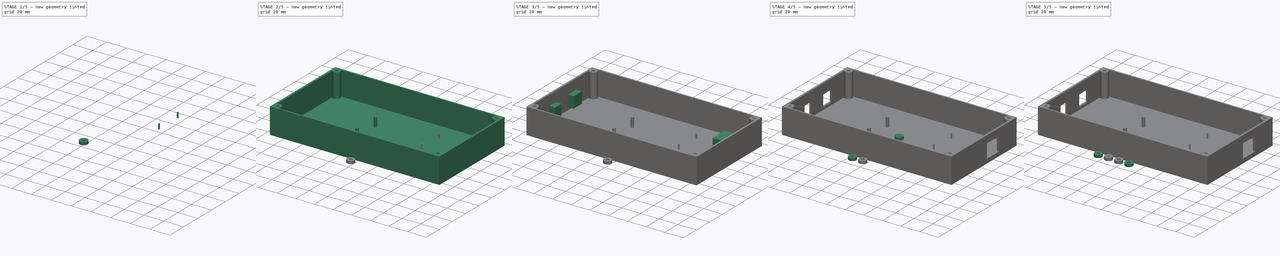
[diagram: build sequence overview — one tinted view per stage of 5, left to right]
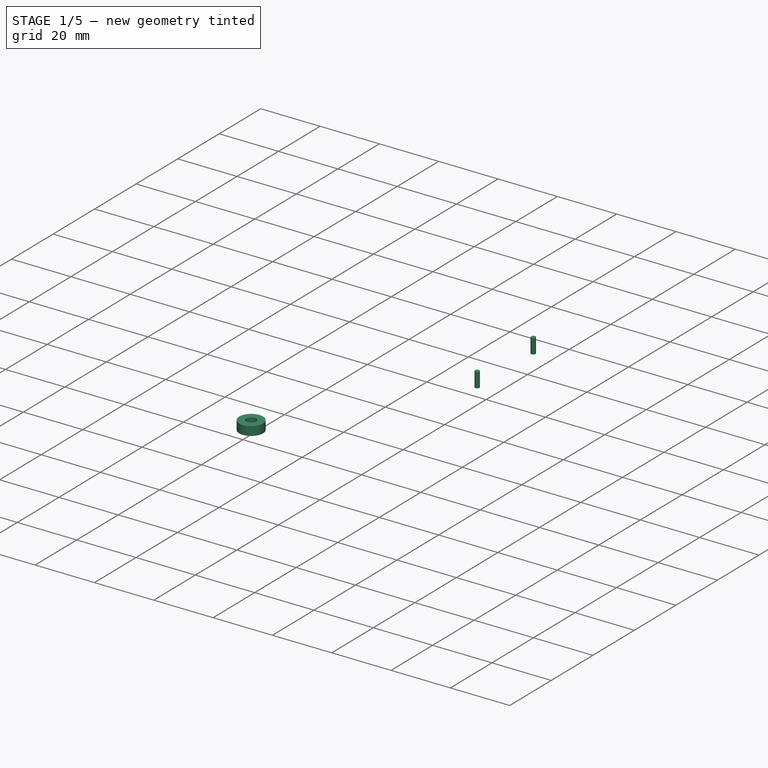
[diagram: stage 1 of 5 — iso view after this stage's code; geometry added in this stage tinted green]
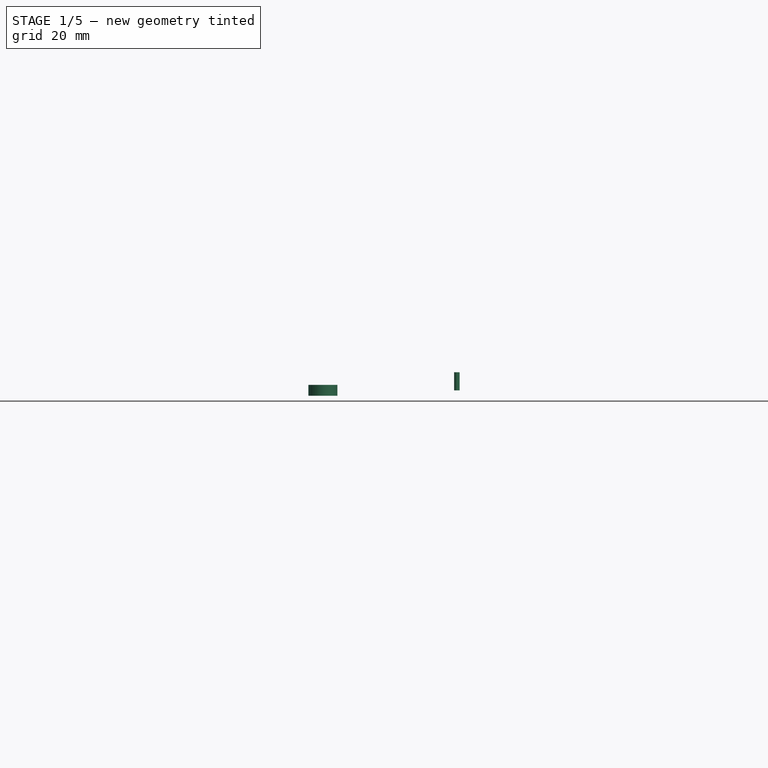
[diagram: stage 1 of 5 — front view after this stage's code; geometry added in this stage tinted green]
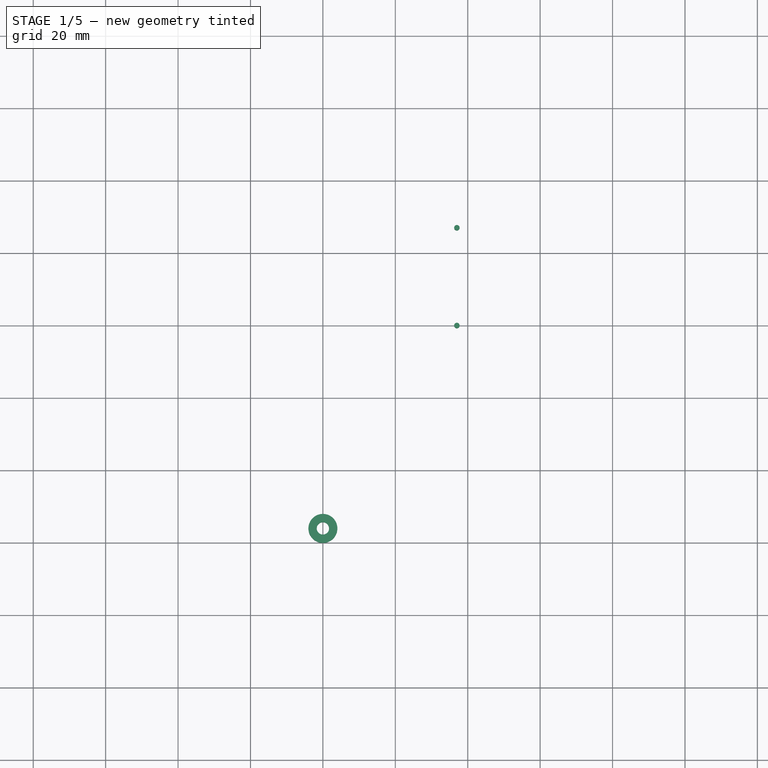
[diagram: stage 1 of 5 — top view after this stage's code; geometry added in this stage tinted green]
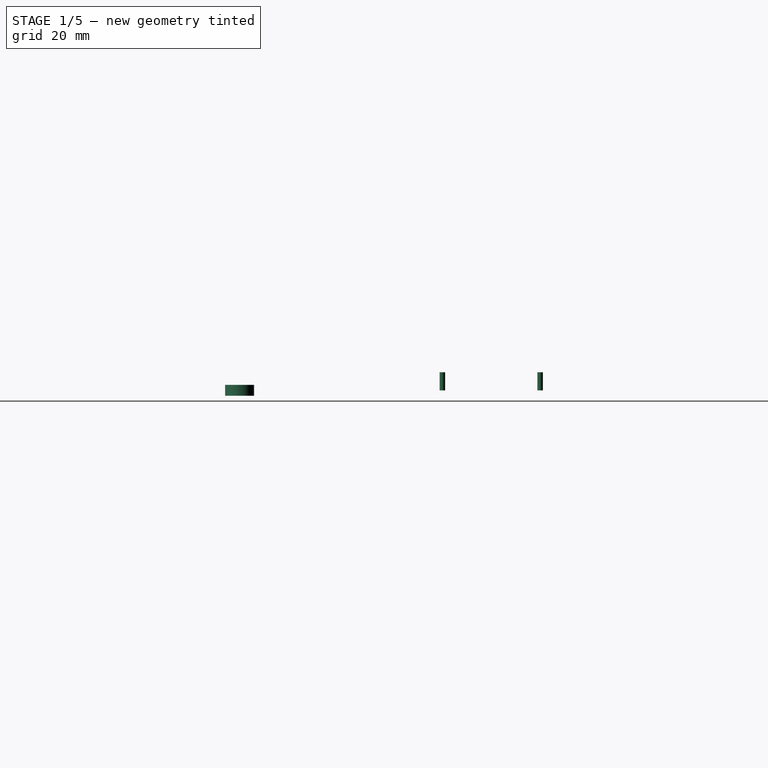
[diagram: stage 1 of 5 — right view after this stage's code; geometry added in this stage tinted green]
FCSTD DOCUMENT  (FreeCAD 0.16R6712 (Git))
Label: case unten
License: All rights reserved
LicenseURL: http://en.wikipedia.org/wiki/All_rights_reserved
objects: Part::Cylinder×12, Part::Cut×5, Sketcher::SketchObject×3, Part::Extrusion×3, Part::Box×3, Part::MultiFuse×2
note: 28 computed .brp shape members not serialized (recipe doc carries the construction recipe); baked Part::Feature solids carry a one-line shape summary decoded from their .brp

FEATURE [Part::Cylinder] Cylinder007  label="Zylinder004"
  Angle = 360
  Height = 5
  Placement = pos=(37,27,0) rot=(0,0,1;0rad)
  Radius = 0.75
FEATURE [Part::Cylinder] Cylinder008  label="Zylinder005"
  Angle = 360
  Height = 5
  Placement = pos=(37,0,0) rot=(0,0,1;0rad)
  Radius = 0.75
FEATURE [Part::Cylinder] Cylinder013  label="Zylinder010"
  Angle = 360
  Height = 3
  Radius = 1.7
FEATURE [Part::Cylinder] Cylinder014  label="Zylinder011"
  Angle = 360
  Height = 3
  Radius = 4
FEATURE [Part::Cut] Cut005  label="Cut Mutterscheibe"
  Base = -> Cylinder014
  Placement = pos=(0,-56,-1.5) rot=(0,0,1;0rad)
  Tool = -> Cylinder013
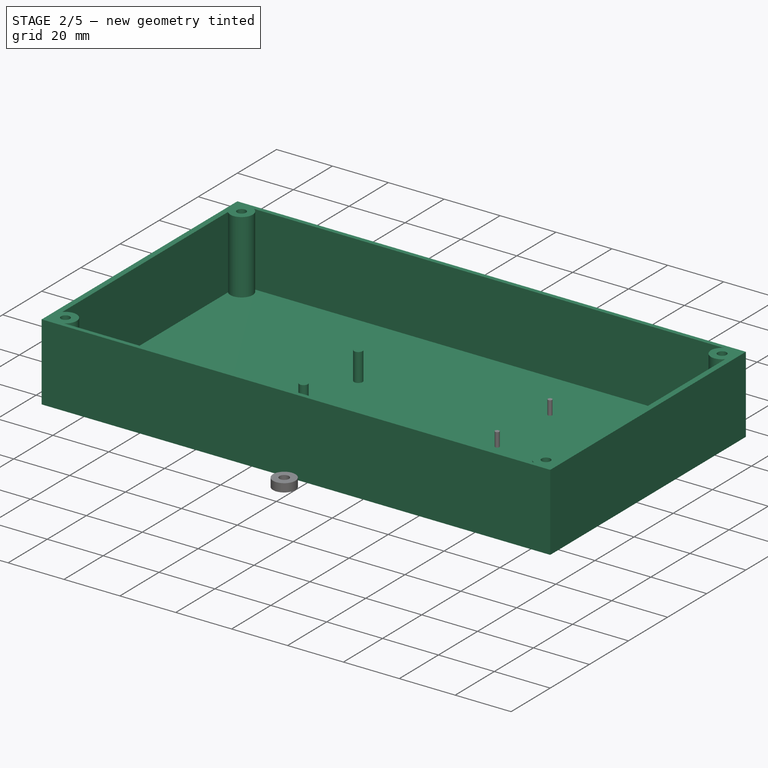
[diagram: stage 2 of 5 — iso view after this stage's code; geometry added in this stage tinted green]
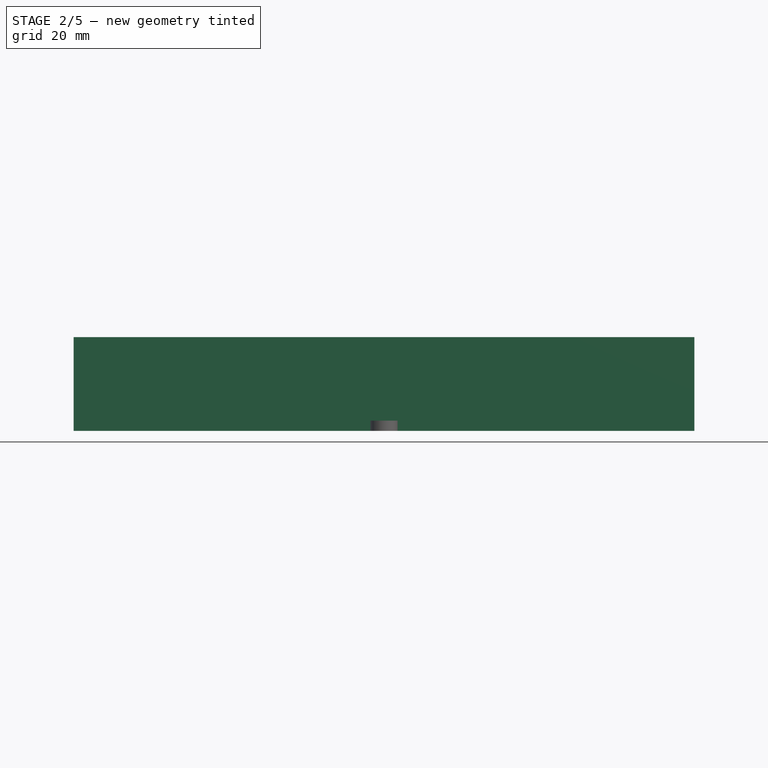
[diagram: stage 2 of 5 — front view after this stage's code; geometry added in this stage tinted green]
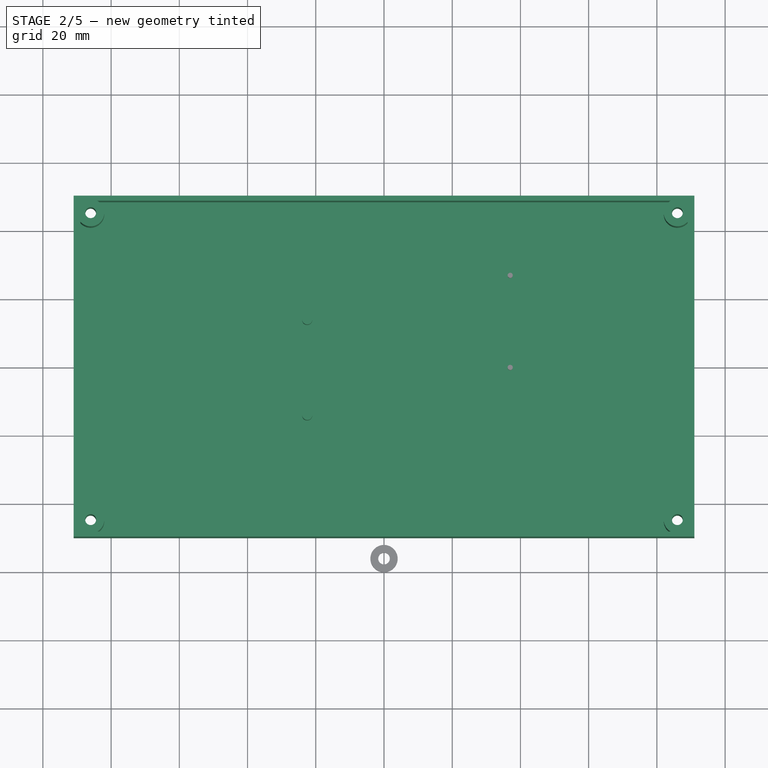
[diagram: stage 2 of 5 — top view after this stage's code; geometry added in this stage tinted green]
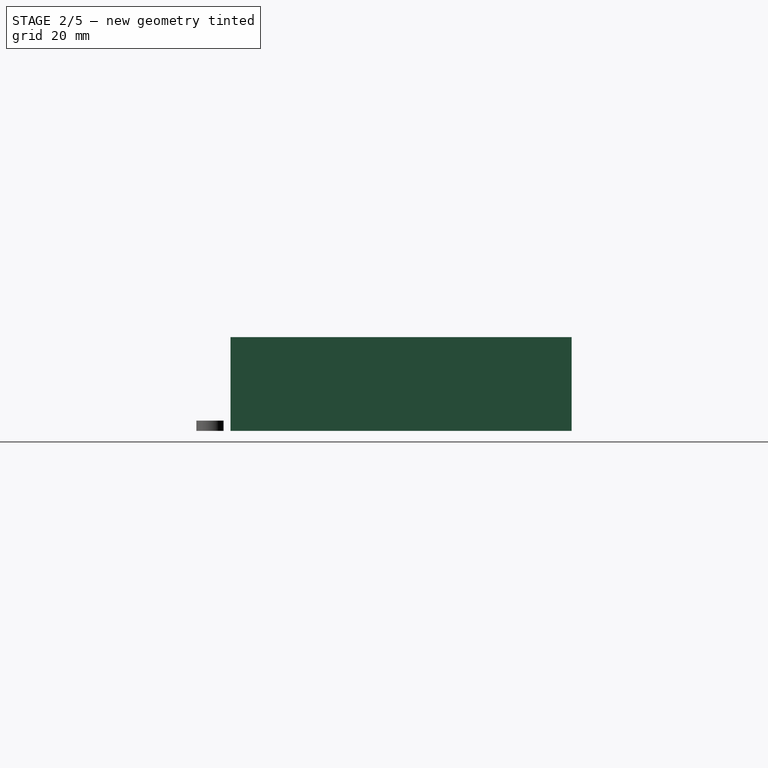
[diagram: stage 2 of 5 — right view after this stage's code; geometry added in this stage tinted green]
FEATURE [Sketcher::SketchObject] Sketch003  label="Sketch außen001"
  sketch-geometry (16):
    g0: LineSegment StartX=-84.0635 StartY=48.5 StartZ=0 EndX=84.0635 EndY=48.5 EndZ=0
    g1: LineSegment StartX=89 StartY=42.3542 StartZ=0 EndX=89 EndY=-42.3542 EndZ=0
    g2: LineSegment StartX=84.0635 StartY=-48.5 StartZ=0 EndX=-84.0635 EndY=-48.5 EndZ=0
    g3: LineSegment StartX=-89 StartY=-42.3542 StartZ=0 EndX=-89 EndY=42.3542 EndZ=0
    g4: LineSegment StartX=-91 StartY=50 StartZ=0 EndX=91 EndY=50 EndZ=0
    g5: LineSegment StartX=91 StartY=50 StartZ=0 EndX=91 EndY=-50 EndZ=0
    g6: LineSegment StartX=91 StartY=-50 StartZ=0 EndX=-91 EndY=-50 EndZ=0
    g7: LineSegment StartX=-91 StartY=-50 StartZ=0 EndX=-91 EndY=50 EndZ=0
    g8: Circle CenterX=-86 CenterY=45 CenterZ=0 NormalX=0 NormalY=0 NormalZ=1 Radius=1.6
    g9: Circle CenterX=86 CenterY=45 CenterZ=0 NormalX=0 NormalY=0 NormalZ=1 Radius=1.6
    g10: Circle CenterX=86 CenterY=-45 CenterZ=0 NormalX=0 NormalY=0 NormalZ=1 Radius=1.6
    g11: Circle CenterX=-86 CenterY=-45 CenterZ=0 NormalX=0 NormalY=0 NormalZ=1 Radius=1.6
    g12: ArcOfCircle CenterX=-86 CenterY=45 CenterZ=0 NormalX=0 NormalY=0 NormalZ=1 Radius=4 StartAngle=3.86433 EndAngle=7.34862
    g13: ArcOfCircle CenterX=-86 CenterY=-45 CenterZ=0 NormalX=0 NormalY=0 NormalZ=1 Radius=4 StartAngle=5.21775 EndAngle=8.70204
    g14: ArcOfCircle CenterX=86 CenterY=45 CenterZ=0 NormalX=0 NormalY=0 NormalZ=1 Radius=4 StartAngle=2.07616 EndAngle=5.56045
    g15: ArcOfCircle CenterX=86 CenterY=-45 CenterZ=0 NormalX=0 NormalY=0 NormalZ=1 Radius=4 StartAngle=0.722734 EndAngle=4.20703
  constraints (45):
    c: Horizontal(g0)
    c: Horizontal(g2)
    c: Vertical(g1)
    c: Vertical(g3)
    c: Coincident(g4,g5)
    c: Coincident(g5,g6)
    c: Coincident(g6,g7)
    c: Coincident(g7,g4)
    c: Horizontal(g4)
    c: Horizontal(g6)
    c: Vertical(g5)
    c: Vertical(g7)
    c: DistanceX(g4,g4) = 182
    c: DistanceY(g7,g7) = 100
    c: Symmetric(g4,g6,g-1)
    c: Symmetric(g4,g4,g-2)
    c: Coincident(g12,g8)
    c: Coincident(g11,g13)
    c: Coincident(g10,g15)
    c: Coincident(g9,g14)
    c: Radius(g8) = 1.6
    c: Radius(g10) = 1.6
    c: Radius(g9) = 1.6
    c: Radius(g11) = 1.6
    c: Radius(g13) = 4
    c: Radius(g15) = 4
    c: Radius(g14) = 4
    c: Radius(g12) = 4
    c: Symmetric(g10,g9,g-1)
    c: Symmetric(g11,g8,g-1)
    c: Symmetric(g11,g10,g-2)
    c: DistanceY(g6,g11) = 5
    c: DistanceX(g6,g11) = 5
    c: Coincident(g13,g2)
    c: Coincident(g13,g3)
    c: Coincident(g12,g3)
    c: Coincident(g12,g0)
    c: Coincident(g15,g1)
    c: Coincident(g15,g2)
    c: Coincident(g14,g0)
    c: Coincident(g14,g1)
    c: DistanceX(g6,g3) = 2
    c: DistanceY(g6,g2) = 1.5
    c: DistanceX(g1,g4) = 2
    c: DistanceY(g0,g4) = 1.5
FEATURE [Part::Extrusion] Extrude004  label="Extrude außen Boden"
  Base = -> Sketch003
  Dir = (0,0,26)
  Solid = true
FEATURE [Sketcher::SketchObject] Sketch002  label="Sketch Boden"
  sketch-geometry (32):
    g0: LineSegment StartX=-91 StartY=50 StartZ=0 EndX=91 EndY=50 EndZ=0
    g1: LineSegment StartX=91 StartY=50 StartZ=0 EndX=91 EndY=-50 EndZ=0
    g2: LineSegment StartX=91 StartY=-50 StartZ=0 EndX=-91 EndY=-50 EndZ=0
    g3: LineSegment StartX=-91 StartY=-50 StartZ=0 EndX=-91 EndY=50 EndZ=0
    g4: LineSegment StartX=-82.7159 StartY=44.12 StartZ=0 EndX=-83.5958 EndY=47.4042 EndZ=0
    g5: LineSegment StartX=-83.5958 StartY=47.4042 StartZ=0 EndX=-86.88 EndY=48.2841 EndZ=0
    g6: LineSegment StartX=-86.88 StartY=48.2841 StartZ=0 EndX=-89.2841 EndY=45.88 EndZ=0
    g7: LineSegment StartX=-89.2841 StartY=45.88 StartZ=0 EndX=-88.4042 EndY=42.5958 EndZ=0
    g8: LineSegment StartX=-88.4042 StartY=42.5958 StartZ=0 EndX=-85.12 EndY=41.7159 EndZ=0
    g9: LineSegment StartX=-85.12 StartY=41.7159 StartZ=0 EndX=-82.7159 EndY=44.12 EndZ=0
    g10: Circle [constr] CenterX=-86 CenterY=45 CenterZ=0 NormalX=0 NormalY=0 NormalZ=1 Radius=3.4
    g11: LineSegment StartX=-86.88 StartY=-48.2841 StartZ=0 EndX=-83.5958 EndY=-47.4042 EndZ=0
    g12: LineSegment StartX=-83.5958 StartY=-47.4042 StartZ=0 EndX=-82.7159 EndY=-44.12 EndZ=0
    g13: LineSegment StartX=-82.7159 StartY=-44.12 StartZ=0 EndX=-85.12 EndY=-41.7159 EndZ=0
    g14: LineSegment StartX=-85.12 StartY=-41.7159 StartZ=0 EndX=-88.4042 EndY=-42.5958 EndZ=0
    g15: LineSegment StartX=-88.4042 StartY=-42.5958 StartZ=0 EndX=-89.2841 EndY=-45.88 EndZ=0
    g16: LineSegment StartX=-89.2841 StartY=-45.88 StartZ=0 EndX=-86.88 EndY=-48.2841 EndZ=0
    g17: Circle [constr] CenterX=-86 CenterY=-45 CenterZ=0 NormalX=0 NormalY=0 NormalZ=1 Radius=3.4
    g18: LineSegment StartX=85.12 StartY=41.7159 StartZ=0 EndX=88.4042 EndY=42.5958 EndZ=0
    g19: LineSegment StartX=88.4042 StartY=42.5958 StartZ=0 EndX=89.2841 EndY=45.88 EndZ=0
    g20: LineSegment StartX=89.2841 StartY=45.88 StartZ=0 EndX=86.88 EndY=48.2841 EndZ=0
    g21: LineSegment StartX=86.88 StartY=48.2841 StartZ=0 EndX=83.5958 EndY=47.4042 EndZ=0
    g22: LineSegment StartX=83.5958 StartY=47.4042 StartZ=0 EndX=82.7159 EndY=44.12 EndZ=0
    g23: LineSegment StartX=82.7159 StartY=44.12 StartZ=0 EndX=85.12 EndY=41.7159 EndZ=0
    g24: Circle [constr] CenterX=86 CenterY=45 CenterZ=0 NormalX=0 NormalY=0 NormalZ=1 Radius=3.4
    g25: LineSegment StartX=89.2841 StartY=-45.88 StartZ=0 EndX=88.4042 EndY=-42.5958 EndZ=0
    g26: LineSegment StartX=88.4042 StartY=-42.5958 StartZ=0 EndX=85.12 EndY=-41.7159 EndZ=0
    g27: LineSegment StartX=85.12 StartY=-41.7159 StartZ=0 EndX=82.7159 EndY=-44.12 EndZ=0
    g28: LineSegment StartX=82.7159 StartY=-44.12 StartZ=0 EndX=83.5958 EndY=-47.4042 EndZ=0
    g29: LineSegment StartX=83.5958 StartY=-47.4042 StartZ=0 EndX=86.88 EndY=-48.2841 EndZ=0
    g30: LineSegment StartX=86.88 StartY=-48.2841 StartZ=0 EndX=89.2841 EndY=-45.88 EndZ=0
    g31: Circle [constr] CenterX=86 CenterY=-45 CenterZ=0 NormalX=0 NormalY=0 NormalZ=1 Radius=3.4
  constraints (79):
    c: Coincident(g0,g1)
    c: Coincident(g1,g2)
    c: Coincident(g2,g3)
    c: Coincident(g3,g0)
    c: Horizontal(g0)
    c: Horizontal(g2)
    c: Vertical(g1)
    c: Vertical(g3)
    c: Coincident(g4,g5)
    c: Coincident(g5,g6)
    c: Coincident(g6,g7)
    c: Coincident(g7,g8)
    c: Coincident(g8,g9)
    c: Coincident(g9,g4)
    c: Equal(g4, g5-g9) x5
    c: PointOnObject(g4,g10)
    c: PointOnObject(g5,g10)
    c: PointOnObject(g6,g10)
    c: PointOnObject(g7,g10)
    c: PointOnObject(g8,g10)
    c: PointOnObject(g9,g10)
    c: Coincident(g11,g12)
    c: Coincident(g12,g13)
    c: Coincident(g13,g14)
    c: Coincident(g14,g15)
    c: Coincident(g15,g16)
    c: Coincident(g16,g11)
    c: Equal(g11, g12-g16) x5
    c: PointOnObject(g11,g17)
    c: PointOnObject(g12,g17)
    c: PointOnObject(g13,g17)
    c: PointOnObject(g14,g17)
    c: PointOnObject(g15,g17)
    c: PointOnObject(g16,g17)
    c: Coincident(g18,g19)
    c: Coincident(g19,g20)
    c: Coincident(g20,g21)
    c: Coincident(g21,g22)
    c: Coincident(g22,g23)
    c: Coincident(g23,g18)
    c: Equal(g18, g19-g23) x5
    c: PointOnObject(g18,g24)
    c: PointOnObject(g19,g24)
    c: PointOnObject(g20,g24)
    c: PointOnObject(g21,g24)
    c: PointOnObject(g22,g24)
    c: PointOnObject(g23,g24)
    c: Coincident(g25,g26)
    c: Coincident(g26,g27)
    c: Coincident(g27,g28)
    c: Coincident(g28,g29)
    c: Coincident(g29,g30)
    c: Coincident(g30,g25)
    c: Equal(g25, g26-g30) x5
    c: PointOnObject(g25,g31)
    c: PointOnObject(g26,g31)
    c: PointOnObject(g27,g31)
    c: PointOnObject(g28,g31)
    c: PointOnObject(g29,g31)
    c: PointOnObject(g30,g31)
    c: Symmetric(g10,g17,g-1)
    c: Symmetric(g31,g24,g-1)
    c: Symmetric(g24,g10,g-2)
    c: DistanceY(g2,g17) = 5
    c: DistanceX(g2,g17) = 5
    c: Radius(g17) = 3.4
    c: DistanceY(g2,g0) = 100
    c: DistanceX(g2,g1) = 182
    c: Equal(g17,g10)
    c: Equal(g10,g18)
    c: Equal(g18,g31)
    c: Symmetric(g0,g0,g-2)
    c: Symmetric(g0,g2,g-1)
    c: Equal(g17,g31)
    c: Equal(g31,g24)
    c: Angle(g2,g30) = 0.785398
    c: Angle(g20,g0) = 0.785398
    c: Angle(g0,g6) = 0.785398
    c: Angle(g16,g2) = 0.785398
FEATURE [Part::Extrusion] Extrude002  label="Extrude Boden"
  Base = -> Sketch002
  Dir = (0,0,-1.5)
  Solid = true
FEATURE [Part::Cylinder] Cylinder002  label="Zylinder Schraube"
  Angle = 360
  Height = 10
  Placement = pos=(-22.5,-14,0) rot=(0,0,1;0rad)
  Radius = 1.5
FEATURE [Part::Cylinder] Cylinder003  label="Zylinder Schraube001"
  Angle = 360
  Height = 10
  Placement = pos=(-22.5,14,0) rot=(0,0,1;0rad)
  Radius = 1.5
FEATURE [Part::MultiFuse] Fusion001  label="Fusion Plus"
  Shapes = -> [Cylinder007,Cylinder008,Extrude004,Cylinder002,Cylinder003,Extrude002]
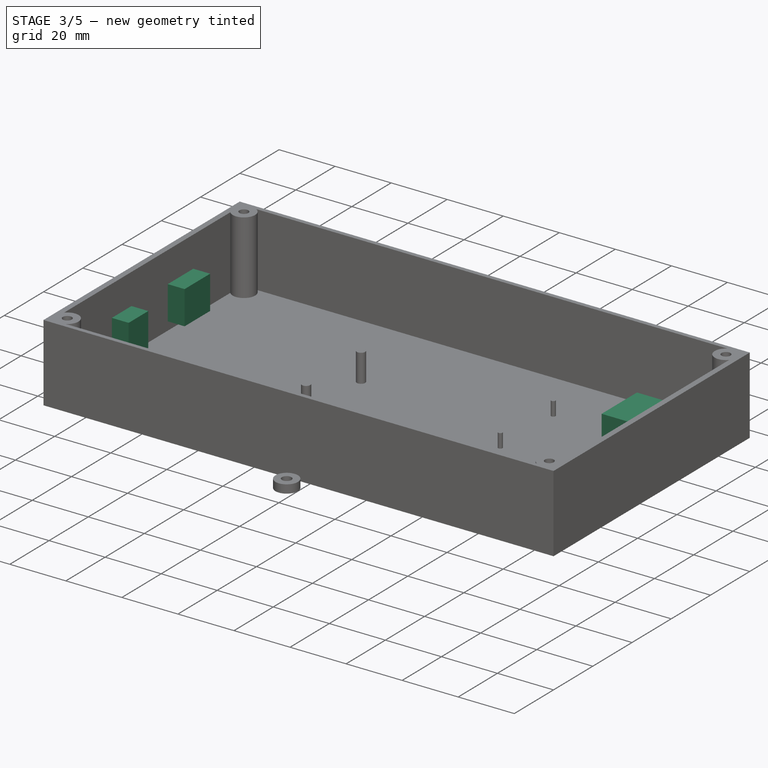
[diagram: stage 3 of 5 — iso view after this stage's code; geometry added in this stage tinted green]
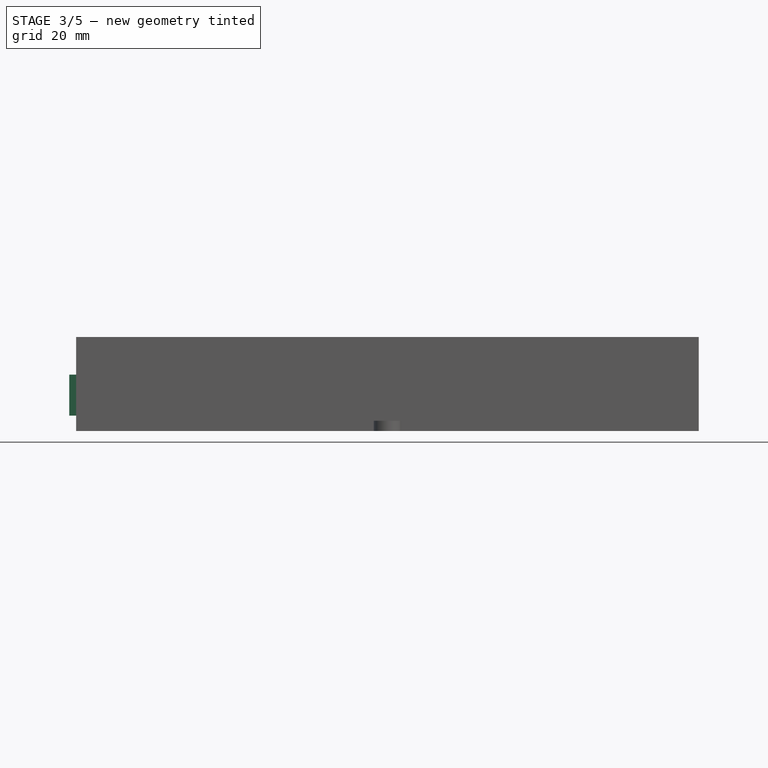
[diagram: stage 3 of 5 — front view after this stage's code; geometry added in this stage tinted green]
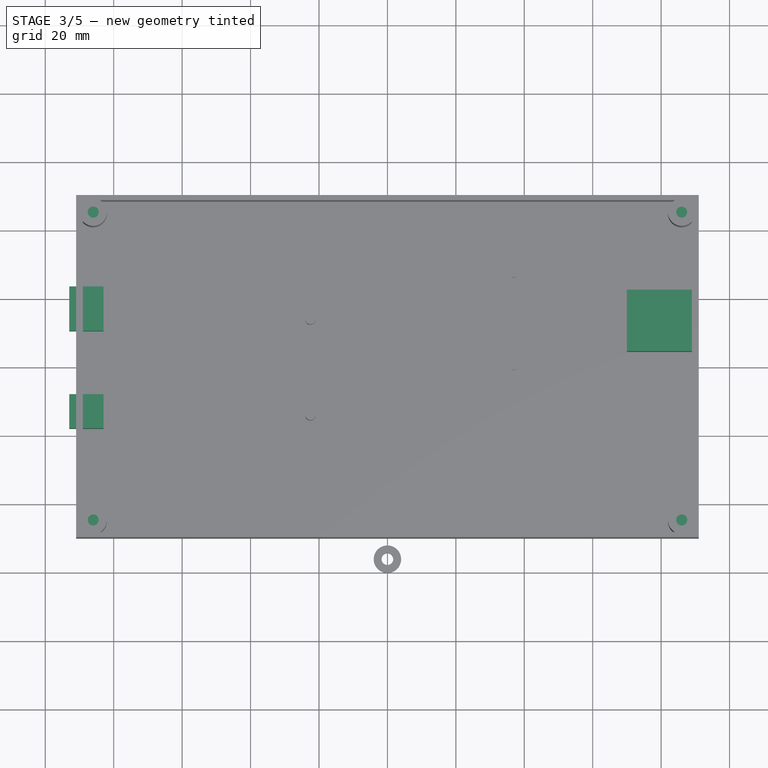
[diagram: stage 3 of 5 — top view after this stage's code; geometry added in this stage tinted green]
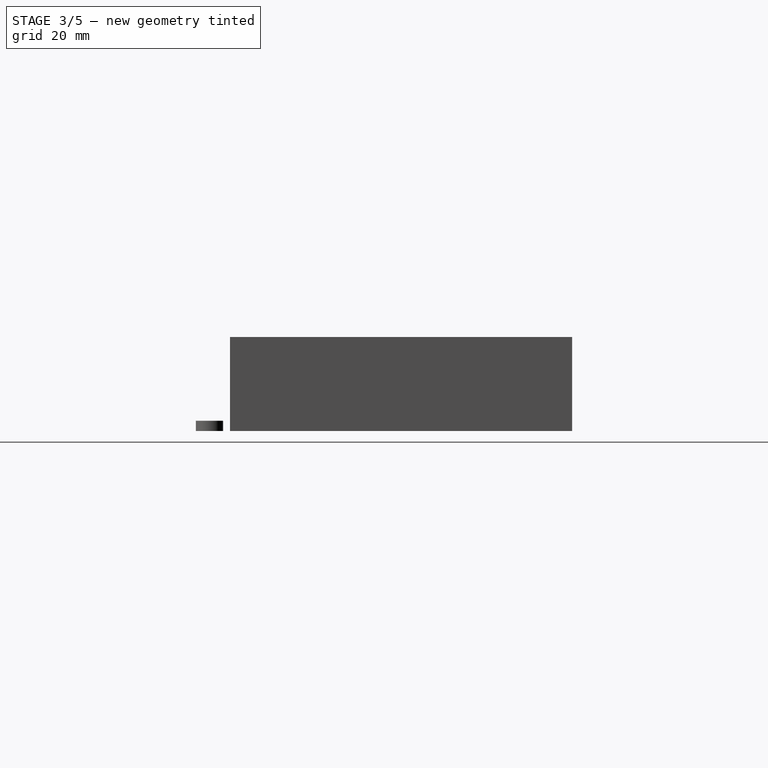
[diagram: stage 3 of 5 — right view after this stage's code; geometry added in this stage tinted green]
FEATURE [Sketcher::SketchObject] Sketch  label="Sketch Schrauben-Einbuchtungen"
  Placement = pos=(0,0,-1.5) rot=(1,0,0;3.14159rad)
  Support = -> Extrude002 [Face30]
  sketch-geometry (28):
    g0: LineSegment StartX=-85.12 StartY=41.7159 StartZ=0 EndX=-82.7159 EndY=44.12 EndZ=0
    g1: LineSegment StartX=-82.7159 StartY=44.12 StartZ=0 EndX=-83.5958 EndY=47.4042 EndZ=0
    g2: LineSegment StartX=-83.5958 StartY=47.4042 StartZ=0 EndX=-86.88 EndY=48.2841 EndZ=0
    g3: LineSegment StartX=-86.88 StartY=48.2841 StartZ=0 EndX=-89.2841 EndY=45.88 EndZ=0
    g4: LineSegment StartX=-89.2841 StartY=45.88 StartZ=0 EndX=-88.4042 EndY=42.5958 EndZ=0
    g5: LineSegment StartX=-88.4042 StartY=42.5958 StartZ=0 EndX=-85.12 EndY=41.7159 EndZ=0
    g6: Circle [constr] CenterX=-86 CenterY=45 CenterZ=0 NormalX=0 NormalY=0 NormalZ=1 Radius=3.4
    g7: LineSegment StartX=89.2841 StartY=45.88 StartZ=0 EndX=86.88 EndY=48.2841 EndZ=0
    g8: LineSegment StartX=86.88 StartY=48.2841 StartZ=0 EndX=83.5958 EndY=47.4042 EndZ=0
    g9: LineSegment StartX=83.5958 StartY=47.4042 StartZ=0 EndX=82.7159 EndY=44.12 EndZ=0
    g10: LineSegment StartX=82.7159 StartY=44.12 StartZ=0 EndX=85.12 EndY=41.7159 EndZ=0
    g11: LineSegment StartX=85.12 StartY=41.7159 StartZ=0 EndX=88.4042 EndY=42.5958 EndZ=0
    g12: LineSegment StartX=88.4042 StartY=42.5958 StartZ=0 EndX=89.2841 EndY=45.88 EndZ=0
    g13: Circle [constr] CenterX=86 CenterY=45 CenterZ=0 NormalX=0 NormalY=0 NormalZ=1 Radius=3.4
    g14: LineSegment StartX=89.2841 StartY=-45.88 StartZ=0 EndX=88.4042 EndY=-42.5958 EndZ=0
    g15: LineSegment StartX=88.4042 StartY=-42.5958 StartZ=0 EndX=85.12 EndY=-41.7159 EndZ=0
    g16: LineSegment StartX=85.12 StartY=-41.7159 StartZ=0 EndX=82.7159 EndY=-44.12 EndZ=0
    g17: LineSegment StartX=82.7159 StartY=-44.12 StartZ=0 EndX=83.5958 EndY=-47.4042 EndZ=0
    g18: LineSegment StartX=83.5958 StartY=-47.4042 StartZ=0 EndX=86.88 EndY=-48.2841 EndZ=0
    g19: LineSegment StartX=86.88 StartY=-48.2841 StartZ=0 EndX=89.2841 EndY=-45.88 EndZ=0
    g20: Circle [constr] CenterX=86 CenterY=-45 CenterZ=0 NormalX=0 NormalY=0 NormalZ=1 Radius=3.4
    g21: LineSegment StartX=-85.12 StartY=-41.7159 StartZ=0 EndX=-88.4042 EndY=-42.5958 EndZ=0
    g22: LineSegment StartX=-88.4042 StartY=-42.5958 StartZ=0 EndX=-89.2841 EndY=-45.88 EndZ=0
    g23: LineSegment StartX=-89.2841 StartY=-45.88 StartZ=0 EndX=-86.88 EndY=-48.2841 EndZ=0
    g24: LineSegment StartX=-86.88 StartY=-48.2841 StartZ=0 EndX=-83.5958 EndY=-47.4042 EndZ=0
    g25: LineSegment StartX=-83.5958 StartY=-47.4042 StartZ=0 EndX=-82.7159 EndY=-44.12 EndZ=0
    g26: LineSegment StartX=-82.7159 StartY=-44.12 StartZ=0 EndX=-85.12 EndY=-41.7159 EndZ=0
    g27: Circle [constr] CenterX=-86 CenterY=-45 CenterZ=0 NormalX=0 NormalY=0 NormalZ=1 Radius=3.4
  constraints (65):
    c: Coincident(g0,g1)
    c: Coincident(g1,g2)
    c: Coincident(g2,g3)
    c: Coincident(g3,g4)
    c: Coincident(g4,g5)
    c: Coincident(g5,g0)
    c: Equal(g0, g1-g5) x5
    c: PointOnObject(g0,g6)
    c: PointOnObject(g1,g6)
    c: PointOnObject(g2,g6)
    c: PointOnObject(g3,g6)
    c: PointOnObject(g4,g6)
    c: PointOnObject(g5,g6)
    c: Coincident(g7,g8)
    c: Coincident(g8,g9)
    c: Coincident(g9,g10)
    c: Coincident(g10,g11)
    c: Coincident(g11,g12)
    c: Coincident(g12,g7)
    c: Equal(g7, g8-g12) x5
    c: PointOnObject(g7,g13)
    c: PointOnObject(g8,g13)
    c: PointOnObject(g9,g13)
    c: PointOnObject(g10,g13)
    c: PointOnObject(g11,g13)
    c: PointOnObject(g12,g13)
    c: Coincident(g14,g15)
    c: Coincident(g15,g16)
    c: Coincident(g16,g17)
    c: Coincident(g17,g18)
    c: Coincident(g18,g19)
    c: Coincident(g19,g14)
    c: Equal(g14, g15-g19) x5
    c: PointOnObject(g14,g20)
    c: PointOnObject(g15,g20)
    c: PointOnObject(g16,g20)
    c: PointOnObject(g17,g20)
    c: PointOnObject(g18,g20)
    c: PointOnObject(g19,g20)
    c: Coincident(g21,g22)
    c: Coincident(g22,g23)
    c: Coincident(g23,g24)
    c: Coincident(g24,g25)
    c: Coincident(g25,g26)
    c: Coincident(g26,g21)
    c: Equal(g21, g22-g26) x5
    c: PointOnObject(g21,g27)
    c: PointOnObject(g22,g27)
    c: PointOnObject(g23,g27)
    c: PointOnObject(g24,g27)
    c: PointOnObject(g25,g27)
    c: PointOnObject(g26,g27)
    c: Symmetric(g6,g13,g-2)
    c: Symmetric(g6,g27,g-1)
    c: Symmetric(g27,g20,g-2)
    c: Equal(g13,g20)
    c: Equal(g20,g27)
    c: Equal(g27,g6)
    c: DistanceY(g27,g-1) = 45
    c: DistanceX(g27,g-1) = 86
    c: Angle(g23,g-1) = 0.785398
    c: Parallel(g7,g23)
    c: Angle(g23,g3) = 1.5708
    c: Angle(g19,g23) = 1.5708
    c: Radius(g27) = 3.4
FEATURE [Part::Extrusion] Extrude  label="Extrude boden muttern"
  Base = -> Sketch
  Dir = (0,0,26)
  Solid = true
FEATURE [Part::Box] Box  label="Würfel USB"
  Height = 12
  Length = 10
  Placement = pos=(-93,10.5,3) rot=(0,0,1;0rad)
  Width = 13
FEATURE [Part::Box] Box001  label="Würfel Power"
  Height = 12
  Length = 10
  Placement = pos=(-93,-18,3) rot=(0,0,1;0rad)
  Width = 10
FEATURE [Part::Box] Box002  label="Würfel Ethernet"
  Height = 15
  Length = 21
  Placement = pos=(70,4.5,3) rot=(0,0,1;0rad)
  Width = 18
FEATURE [Part::MultiFuse] Fusion  label="Fusion Minus"
  Shapes = -> [Box002,Extrude,Box,Box001]
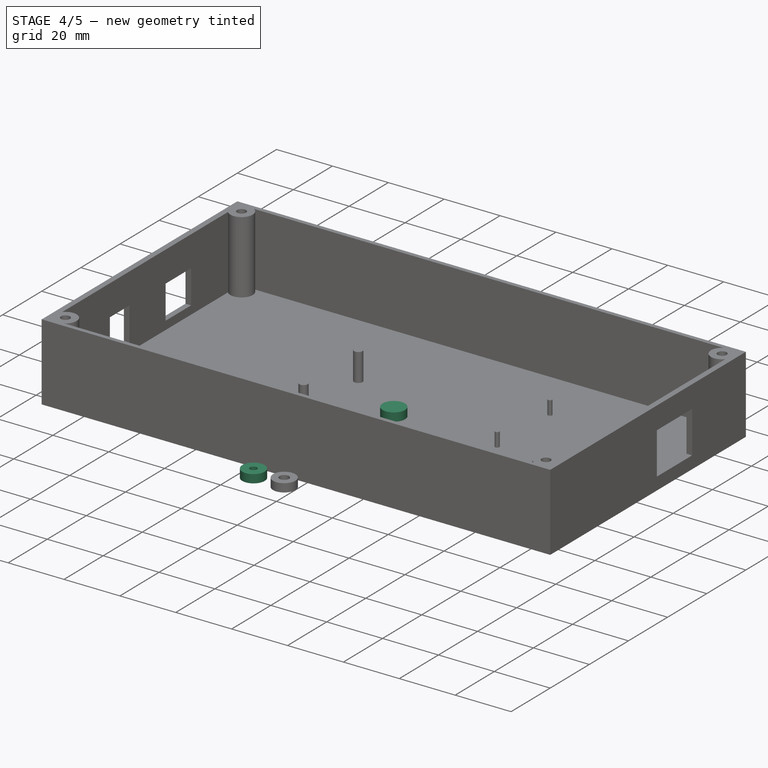
[diagram: stage 4 of 5 — iso view after this stage's code; geometry added in this stage tinted green]
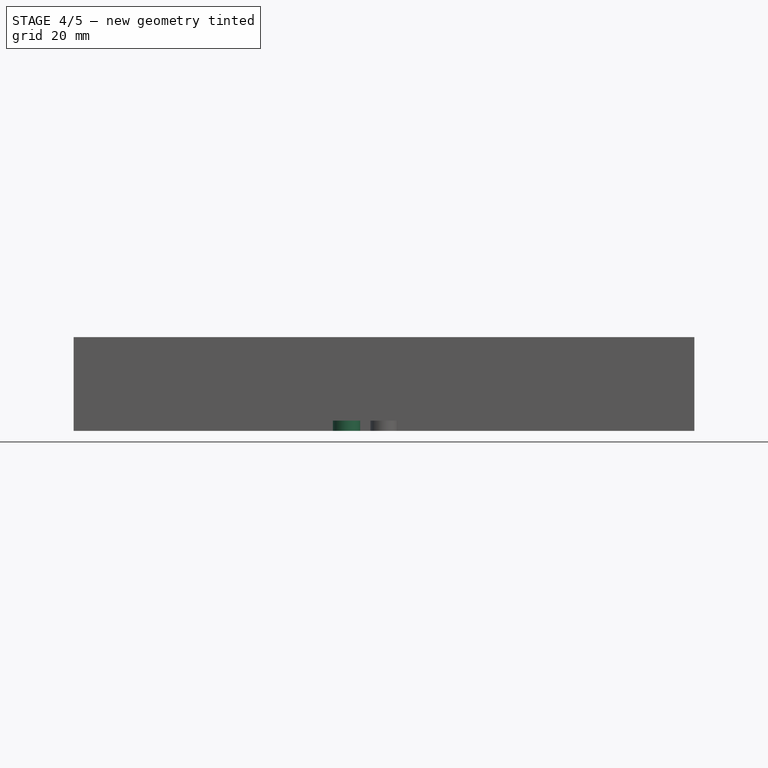
[diagram: stage 4 of 5 — front view after this stage's code; geometry added in this stage tinted green]
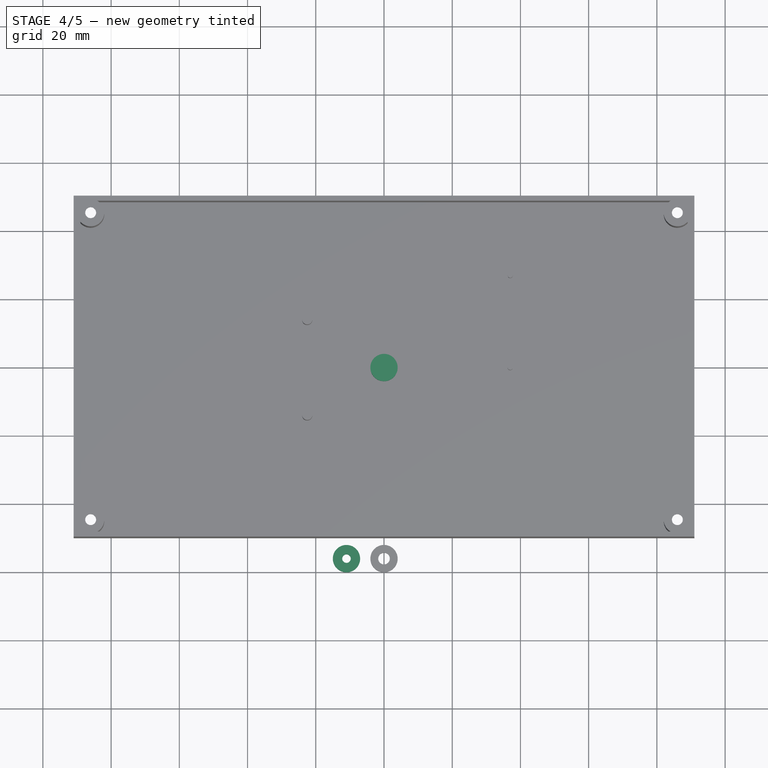
[diagram: stage 4 of 5 — top view after this stage's code; geometry added in this stage tinted green]
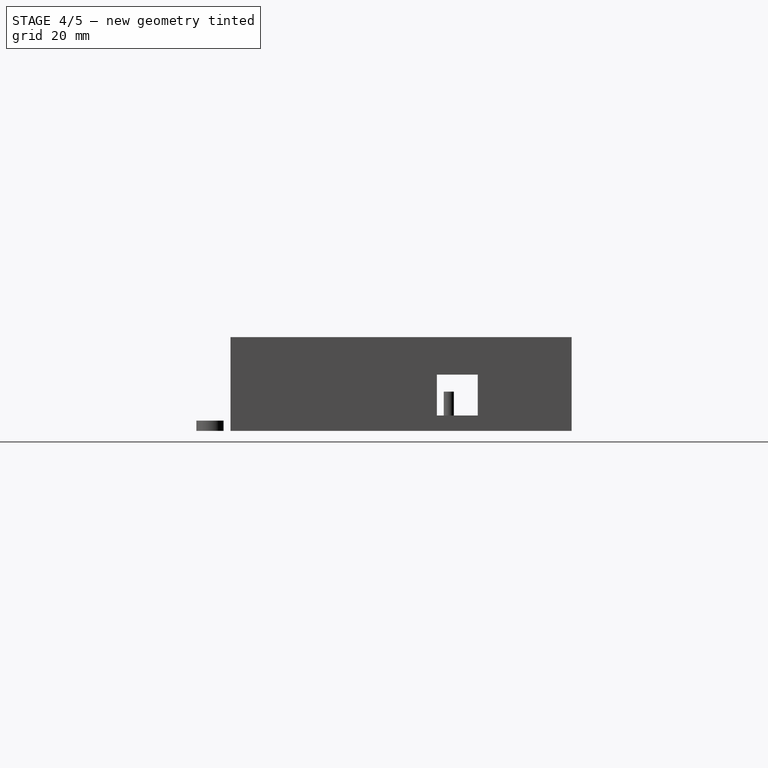
[diagram: stage 4 of 5 — right view after this stage's code; geometry added in this stage tinted green]
FEATURE [Part::Cylinder] Cylinder010  label="Zylinder007"
  Angle = 360
  Height = 3
  Radius = 4
FEATURE [Part::Cylinder] Cylinder011  label="Zylinder008"
  Angle = 360
  Height = 10
  Radius = 1.25
FEATURE [Part::Cylinder] Cylinder012  label="Zylinder009"
  Angle = 360
  Height = 3
  Radius = 4
FEATURE [Part::Cut] Cut004  label="Cut Mutterscheibe klein001"
  Base = -> Cylinder012
  Placement = pos=(-11,-56,-1.5) rot=(0,0,1;0rad)
  Tool = -> Cylinder011
FEATURE [Part::Cut] Cut  label="Cut whole thing"
  Base = -> Fusion001
  Tool = -> Fusion
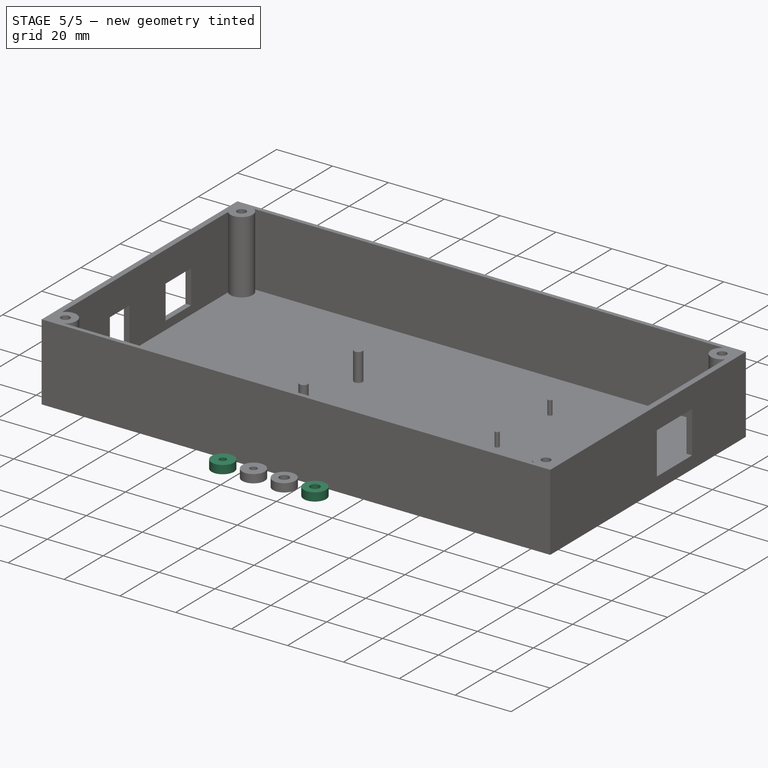
[diagram: stage 5 of 5 — iso view after this stage's code; geometry added in this stage tinted green]
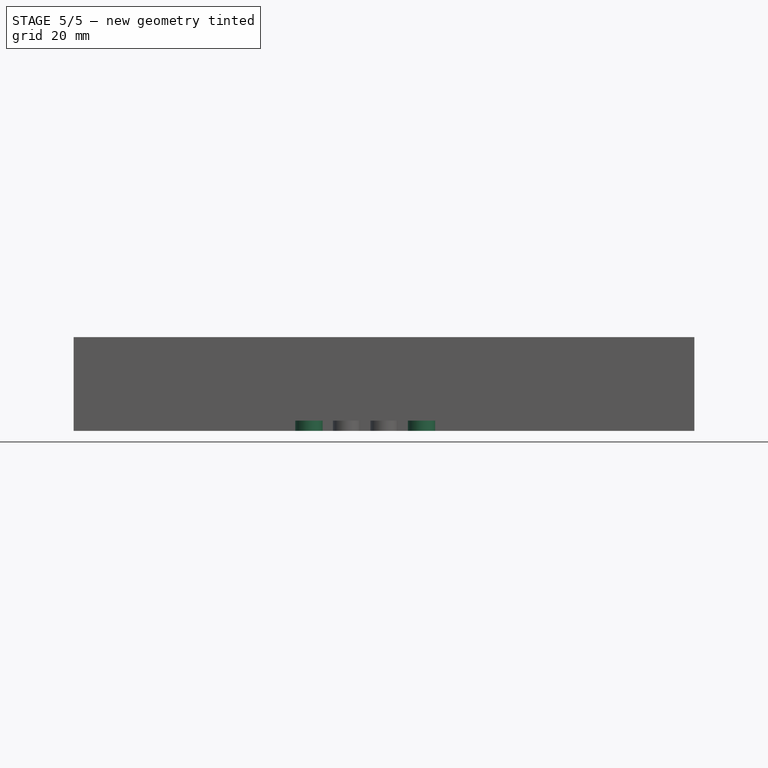
[diagram: stage 5 of 5 — front view after this stage's code; geometry added in this stage tinted green]
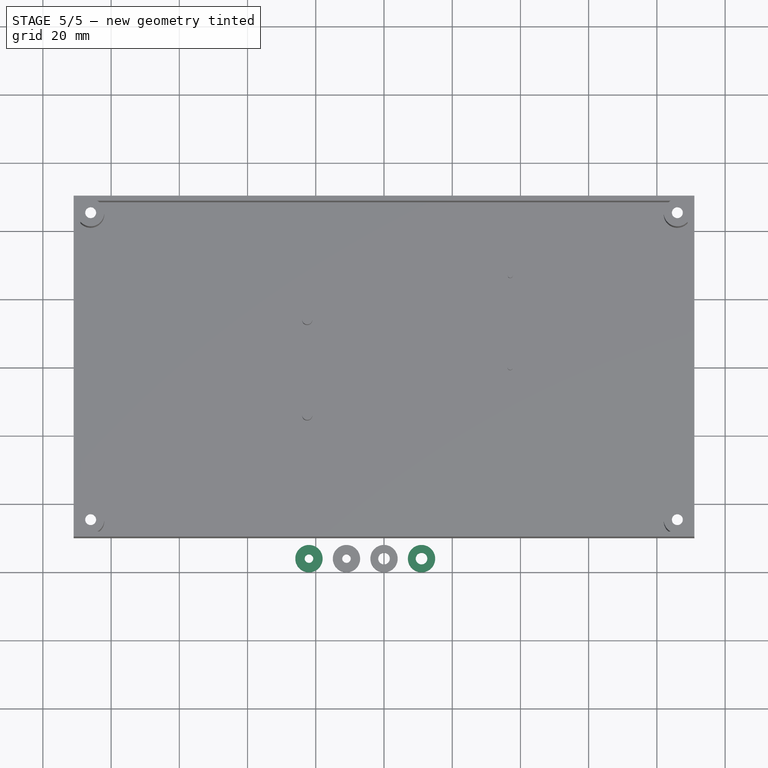
[diagram: stage 5 of 5 — top view after this stage's code; geometry added in this stage tinted green]
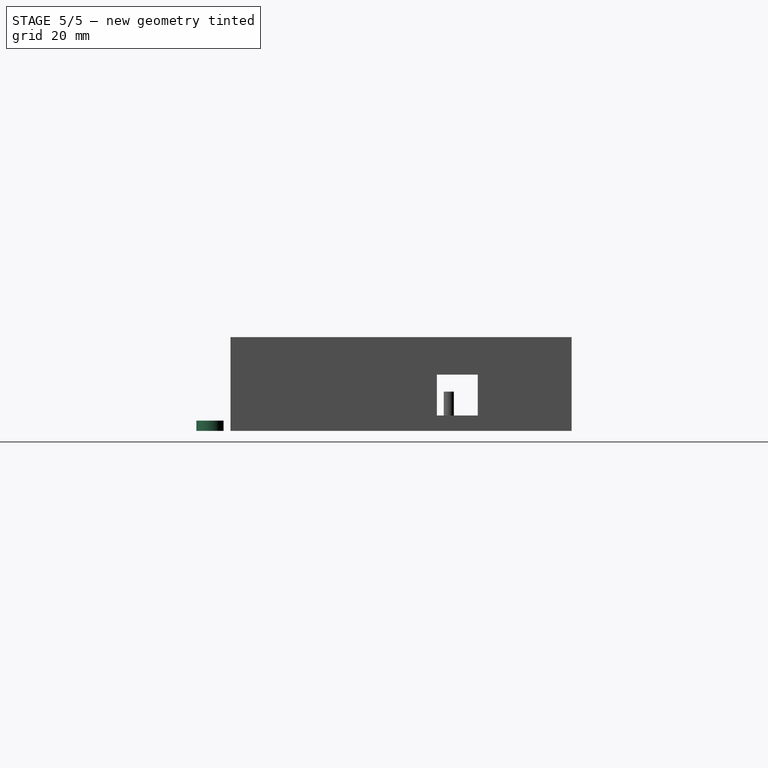
[diagram: stage 5 of 5 — right view after this stage's code; geometry added in this stage tinted green]
FEATURE [Part::Cylinder] Cylinder  label="Zylinder"
  Angle = 360
  Height = 3
  Radius = 1.7
FEATURE [Part::Cylinder] Cylinder004  label="Zylinder001"
  Angle = 360
  Height = 3
  Radius = 4
FEATURE [Part::Cut] Cut002  label="Cut Mutterscheibe001"
  Base = -> Cylinder004
  Placement = pos=(11,-56,-1.5) rot=(0,0,1;0rad)
  Tool = -> Cylinder
FEATURE [Part::Cylinder] Cylinder009  label="Zylinder006"
  Angle = 360
  Height = 10
  Radius = 1.25
FEATURE [Part::Cut] Cut003  label="Cut Mutterscheibe klein"
  Base = -> Cylinder010
  Placement = pos=(-22,-56,-1.5) rot=(0,0,1;0rad)
  Tool = -> Cylinder009
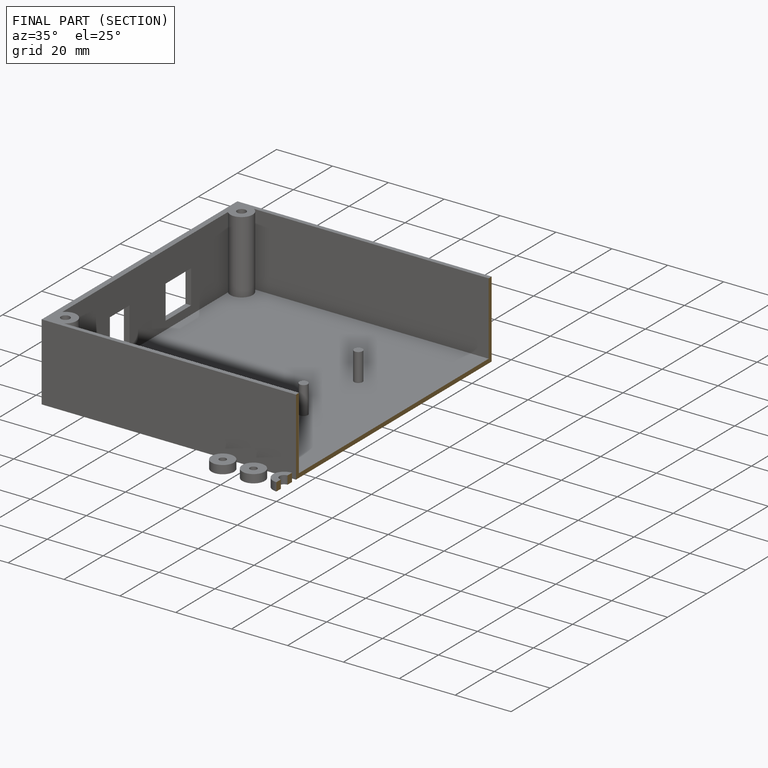
[diagram: finished part — half-section view (interior)]
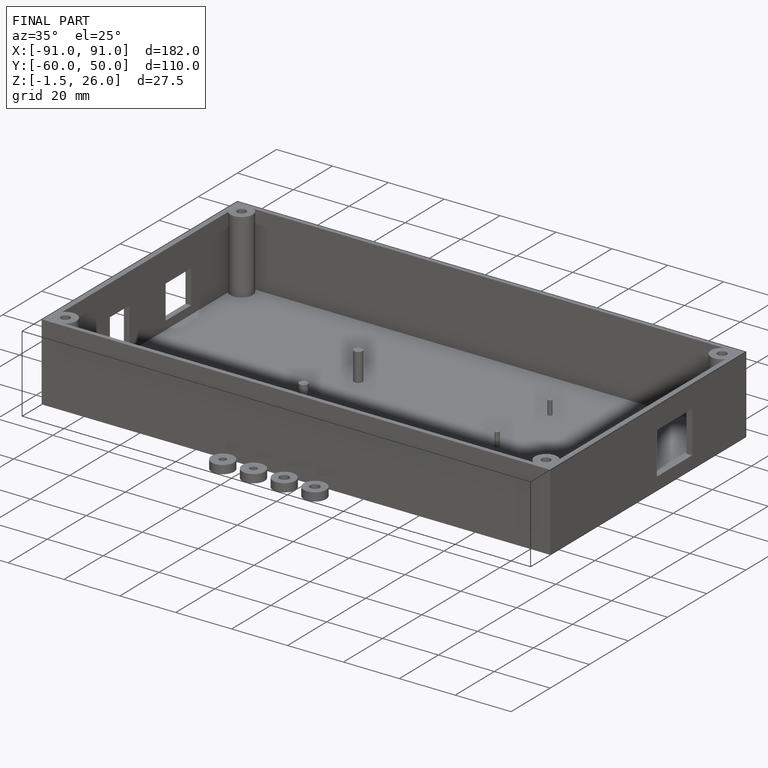
[diagram: finished part — iso view with bounding-box wireframe]
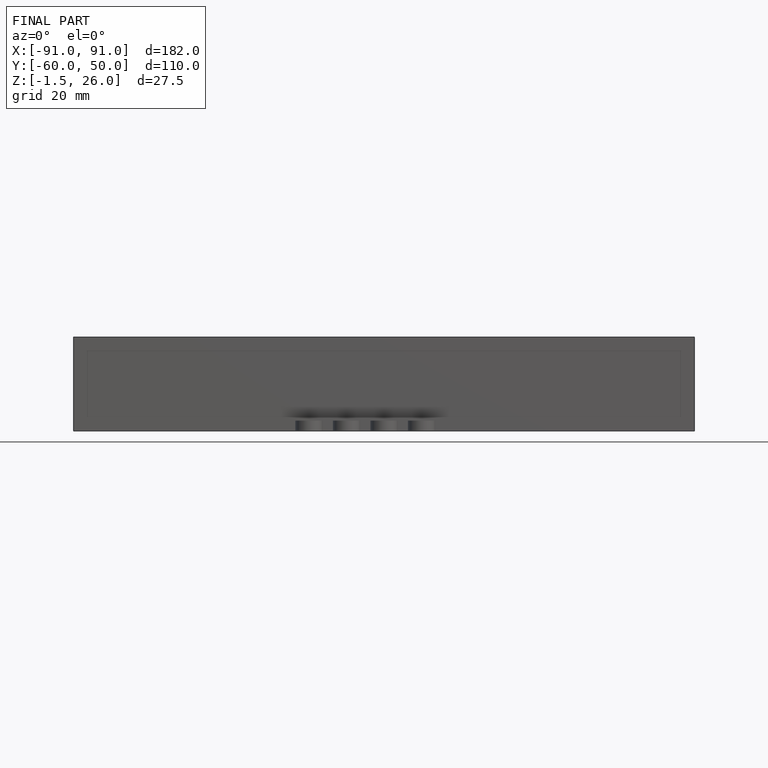
[diagram: finished part — front view with bounding-box wireframe]
